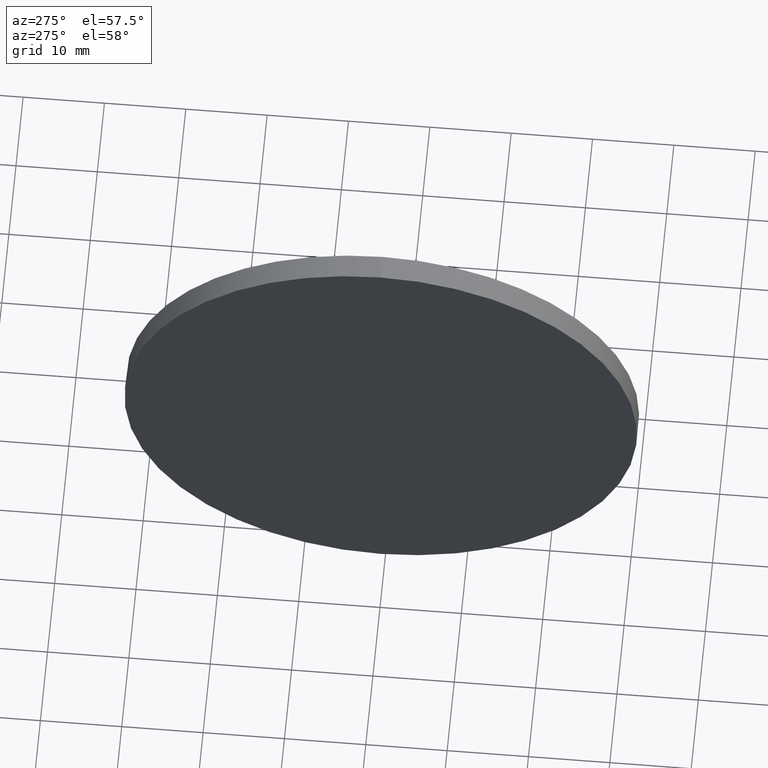
[diagram: clean part render]
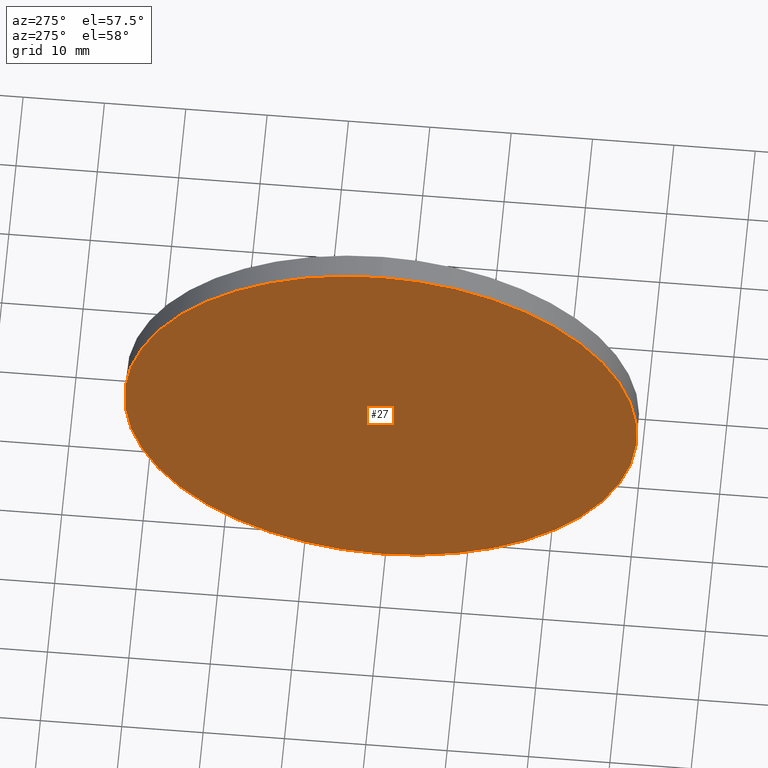
[diagram: same view with one face highlighted and labeled with its STEP entity id]
A machine part, auxiliary view. The second image highlights one B-rep face of the part: STEP entity #27.
In plain terms, the highlighted planar face has unit normal (1, 0, 0).
Its self-contained STEP definition (entity closure, byte-faithful):
#6 = EDGE_CURVE ( 'NONE', #92, #130, #160, .T. ) ;
#12 = EDGE_CURVE ( 'NONE', #130, #92, #111, .T. ) ;
#14 = CARTESIAN_POINT ( 'NONE',  ( 226.8933010013870400, 130.5185814569561000, 0.0000000000000000000 ) ) ;
#19 = CARTESIAN_POINT ( 'NONE',  ( 226.8933010013870400, 130.5185814569561000, -31.50000000000000000 ) ) ;
#27 = ADVANCED_FACE ( 'NONE', ( #86 ), #44, .F. ) ;
#33 = ORIENTED_EDGE ( 'NONE', *, *, #12, .T. ) ;
#35 = AXIS2_PLACEMENT_3D ( 'NONE', #174, #46, #64 ) ;
#36 = CARTESIAN_POINT ( 'NONE',  ( 226.8933010013870400, 130.5185814569561000, 0.0000000000000000000 ) ) ;
#44 = PLANE ( 'NONE',  #128 ) ;
#46 = DIRECTION ( 'NONE',  ( -1.000000000000000000, -0.0000000000000000000, -0.0000000000000000000 ) ) ;
#55 = CARTESIAN_POINT ( 'NONE',  ( 226.8933010013870400, 130.5185814569561000, 31.50000000000000000 ) ) ;
#64 = DIRECTION ( 'NONE',  ( 0.0000000000000000000, 0.0000000000000000000, 1.000000000000000000 ) ) ;
#66 = DIRECTION ( 'NONE',  ( 1.000000000000000000, 0.0000000000000000000, 0.0000000000000000000 ) ) ;
#75 = AXIS2_PLACEMENT_3D ( 'NONE', #14, #115, #90 ) ;
#77 = DIRECTION ( 'NONE',  ( 0.0000000000000000000, 0.0000000000000000000, -1.000000000000000000 ) ) ;
#86 = FACE_OUTER_BOUND ( 'NONE', #169, .T. ) ;
#90 = DIRECTION ( 'NONE',  ( 0.0000000000000000000, 0.0000000000000000000, 1.000000000000000000 ) ) ;
#92 = VERTEX_POINT ( 'NONE', #19 ) ;
#111 = CIRCLE ( 'NONE', #75, 31.50000000000000000 ) ;
#115 = DIRECTION ( 'NONE',  ( -1.000000000000000000, -0.0000000000000000000, -0.0000000000000000000 ) ) ;
#128 = AXIS2_PLACEMENT_3D ( 'NONE', #36, #66, #77 ) ;
#130 = VERTEX_POINT ( 'NONE', #55 ) ;
#159 = ORIENTED_EDGE ( 'NONE', *, *, #6, .T. ) ;
#160 = CIRCLE ( 'NONE', #35, 31.50000000000000000 ) ;
#169 = EDGE_LOOP ( 'NONE', ( #33, #159 ) ) ;
#174 = CARTESIAN_POINT ( 'NONE',  ( 226.8933010013870400, 130.5185814569561000, 0.0000000000000000000 ) ) ;